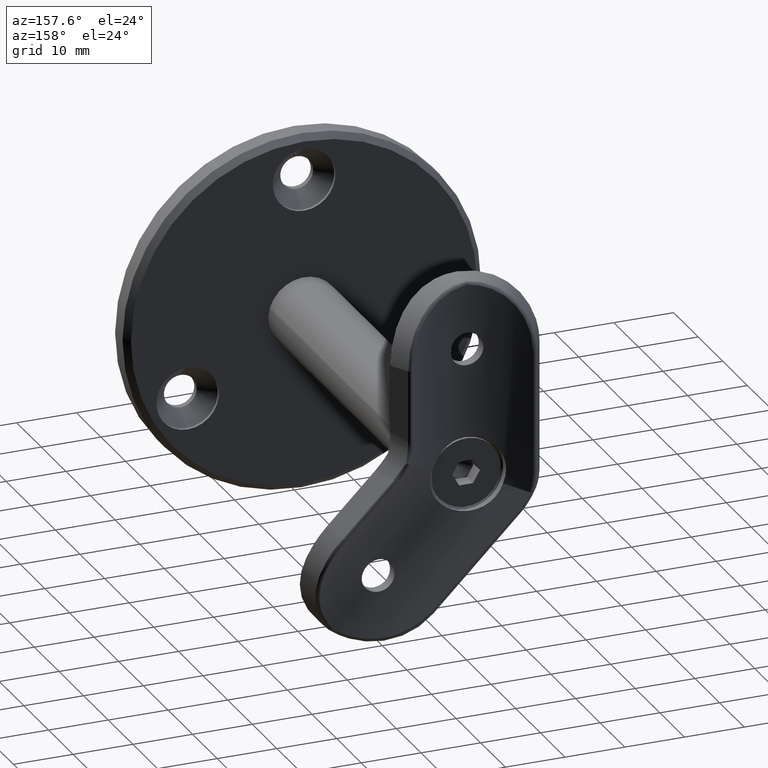
[diagram: clean part render]
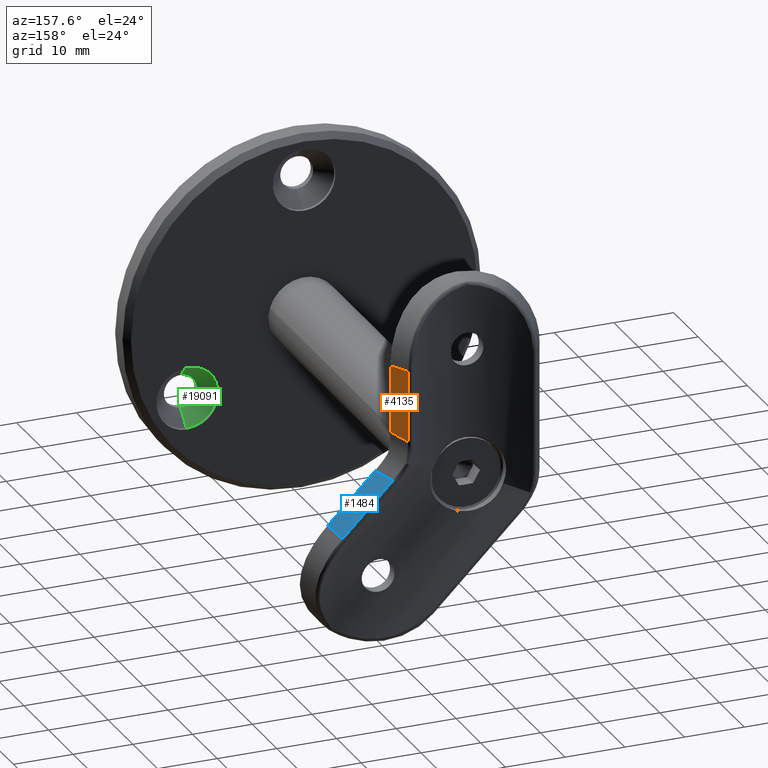
[diagram: same view with three faces highlighted in distinct colors, each labeled with its STEP entity id]
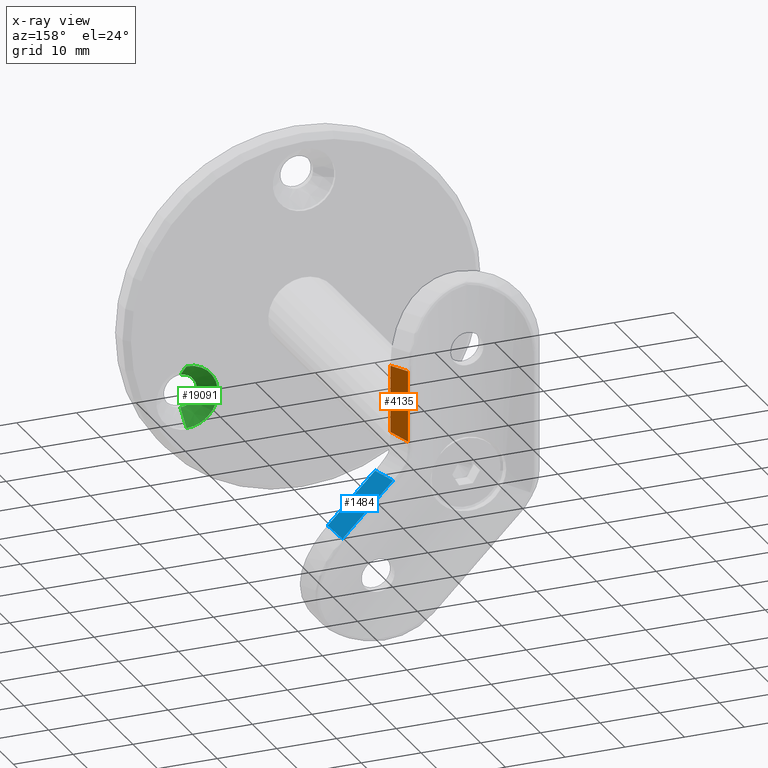
[diagram: x-ray of the same camera — body ghosted, the three highlighted faces saturated]
A machine part, auxiliary view with three faces highlighted in distinct colors.
The next image is the same camera in x-ray (body ghosted, the three faces saturated) — at least one of them is partly hidden behind the body in this view.
Their STEP definitions:

[orange] entity #4135 — the highlighted planar face has unit normal (0.8683, 0.496, 0).
#958 = DIRECTION ( 'NONE',  ( 0.4960317460317461000, -0.8683043861047214900, -0.0000000000000000000 ) ) ;
#1047 = EDGE_CURVE ( 'NONE', #9787, #3648, #6548, .T. ) ;
#2276 = CARTESIAN_POINT ( 'NONE',  ( 12.50000000000000000, 3.318729470161013500, -58.40618737384683400 ) ) ;
#2312 = CARTESIAN_POINT ( 'NONE',  ( 12.50000000000000000, 3.318729470161013500, -23.72569594041010900 ) ) ;
#2379 = LINE ( 'NONE', #11363, #6150 ) ;
#3182 = DIRECTION ( 'NONE',  ( -0.0000000000000000000, -0.0000000000000000000, 1.000000000000000000 ) ) ;
#3183 = VERTEX_POINT ( 'NONE', #2312 ) ;
#3483 = ORIENTED_EDGE ( 'NONE', *, *, #19138, .T. ) ;
#3648 = VERTEX_POINT ( 'NONE', #7754 ) ;
#4135 = ADVANCED_FACE ( 'NONE', ( #18503 ), #8327, .T. ) ;
#4157 = VECTOR ( 'NONE', #958, 1000.000000000000000 ) ;
#4522 = DIRECTION ( 'NONE',  ( 0.0000000000000000000, -0.0000000000000000000, 1.000000000000000000 ) ) ;
#5417 = DIRECTION ( 'NONE',  ( 0.8683043861047214900, 0.4960317460317461000, 0.0000000000000000000 ) ) ;
#5422 = CARTESIAN_POINT ( 'NONE',  ( 9.108661415616625200, 9.255273232014914700, -25.13043437666086900 ) ) ;
#6150 = VECTOR ( 'NONE', #3182, 1000.000000000000000 ) ;
#6548 = LINE ( 'NONE', #15862, #4157 ) ;
#7140 = EDGE_CURVE ( 'NONE', #3183, #3648, #2379, .T. ) ;
#7459 = ORIENTED_EDGE ( 'NONE', *, *, #7140, .F. ) ;
#7754 = CARTESIAN_POINT ( 'NONE',  ( 12.50000000000000000, 3.318729470161013500, -12.50000000000001800 ) ) ;
#7761 = VECTOR ( 'NONE', #4522, 1000.000000000000000 ) ;
#8327 = PLANE ( 'NONE',  #11254 ) ;
#9174 = LINE ( 'NONE', #15203, #7761 ) ;
#9775 = DIRECTION ( 'NONE',  ( -0.4960317460317461000, 0.8683043861047214900, 0.0000000000000000000 ) ) ;
#9787 = VERTEX_POINT ( 'NONE', #18166 ) ;
#9793 = VECTOR ( 'NONE', #12642, 1000.000000000000100 ) ;
#11254 = AXIS2_PLACEMENT_3D ( 'NONE', #2276, #5417, #9775 ) ;
#11363 = CARTESIAN_POINT ( 'NONE',  ( 12.50000000000000000, 3.318729470161013500, -58.40618737384683400 ) ) ;
#12642 = DIRECTION ( 'NONE',  ( -0.4858819846047192600, 0.8505372120568736000, -0.2012589077360306700 ) ) ;
#12684 = ORIENTED_EDGE ( 'NONE', *, *, #1047, .T. ) ;
#12927 = CARTESIAN_POINT ( 'NONE',  ( 10.76103118381681300, 6.362797238949669400, -24.44600040861706300 ) ) ;
#14683 = EDGE_CURVE ( 'NONE', #3183, #17537, #17726, .T. ) ;
#15203 = CARTESIAN_POINT ( 'NONE',  ( 10.76103118381681300, 6.362797238949669400, -58.40618737384683400 ) ) ;
#15862 = CARTESIAN_POINT ( 'NONE',  ( 12.50000000000000000, 3.318729470161013500, -12.50000000000000400 ) ) ;
#17138 = EDGE_LOOP ( 'NONE', ( #19425, #3483, #12684, #7459 ) ) ;
#17537 = VERTEX_POINT ( 'NONE', #12927 ) ;
#17726 = LINE ( 'NONE', #5422, #9793 ) ;
#18166 = CARTESIAN_POINT ( 'NONE',  ( 10.76103118381681300, 6.362797238949669400, -12.50000000000000400 ) ) ;
#18503 = FACE_OUTER_BOUND ( 'NONE', #17138, .T. ) ;
#19138 = EDGE_CURVE ( 'NONE', #17537, #9787, #9174, .T. ) ;
#19425 = ORIENTED_EDGE ( 'NONE', *, *, #14683, .T. ) ;

[blue] entity #1484 — the highlighted planar face has unit normal (-0.614, -0.496, -0.614).
#19 = DIRECTION ( 'NONE',  ( -0.6139839195486697100, -0.4960317460317461600, -0.6139839195486719300 ) ) ;
#432 = VECTOR ( 'NONE', #16965, 1000.000000000000000 ) ;
#821 = ORIENTED_EDGE ( 'NONE', *, *, #15851, .T. ) ;
#994 = EDGE_CURVE ( 'NONE', #14158, #2111, #8179, .T. ) ;
#1032 = DIRECTION ( 'NONE',  ( 0.7071067811865487900, 0.0000000000000000000, -0.7071067811865463500 ) ) ;
#1338 = CARTESIAN_POINT ( 'NONE',  ( 11.65186608117714700, 9.255273232014914700, -31.27027357214758800 ) ) ;
#1484 = ADVANCED_FACE ( 'NONE', ( #5794 ), #18042, .F. ) ;
#1978 = VECTOR ( 'NONE', #9101, 1000.000000000000100 ) ;
#2111 = VERTEX_POINT ( 'NONE', #3201 ) ;
#2917 = VERTEX_POINT ( 'NONE', #9285 ) ;
#3201 = CARTESIAN_POINT ( 'NONE',  ( 22.98097038856280600, 3.318729470161013500, -37.80330085889907800 ) ) ;
#3387 = LINE ( 'NONE', #1338, #1978 ) ;
#3945 = CARTESIAN_POINT ( 'NONE',  ( 13.30423584937733300, 6.362797238949669400, -30.58583960410378200 ) ) ;
#4620 = CARTESIAN_POINT ( 'NONE',  ( 9.460369391804770000, 8.639607842056918200, -28.58138669285514800 ) ) ;
#5794 = FACE_OUTER_BOUND ( 'NONE', #18162, .T. ) ;
#6440 = AXIS2_PLACEMENT_3D ( 'NONE', #4620, #19, #10523 ) ;
#8179 = LINE ( 'NONE', #17478, #12834 ) ;
#8228 = VERTEX_POINT ( 'NONE', #3945 ) ;
#9081 = VECTOR ( 'NONE', #16261, 1000.000000000000100 ) ;
#9101 = DIRECTION ( 'NONE',  ( 0.4858819846047193200, -0.8505372120568736000, 0.2012589077360306400 ) ) ;
#9285 = CARTESIAN_POINT ( 'NONE',  ( 21.75133374636773100, 6.362797238949669400, -39.03293750109414600 ) ) ;
#9577 = CARTESIAN_POINT ( 'NONE',  ( 10.38007616496672900, 6.362797238949669400, -27.66167991969318900 ) ) ;
#10129 = ORIENTED_EDGE ( 'NONE', *, *, #12583, .T. ) ;
#10230 = CARTESIAN_POINT ( 'NONE',  ( 21.57798074335140400, 6.791947014579899500, -39.20629050411047700 ) ) ;
#10523 = DIRECTION ( 'NONE',  ( -0.7071067811865487900, 0.0000000000000000000, 0.7071067811865462400 ) ) ;
#10941 = ORIENTED_EDGE ( 'NONE', *, *, #994, .T. ) ;
#12583 = EDGE_CURVE ( 'NONE', #2917, #8228, #14501, .T. ) ;
#12834 = VECTOR ( 'NONE', #1032, 1000.000000000000000 ) ;
#13180 = ORIENTED_EDGE ( 'NONE', *, *, #18225, .T. ) ;
#13990 = LINE ( 'NONE', #10230, #9081 ) ;
#14158 = VERTEX_POINT ( 'NONE', #17377 ) ;
#14501 = LINE ( 'NONE', #9577, #432 ) ;
#15851 = EDGE_CURVE ( 'NONE', #2111, #2917, #13990, .T. ) ;
#16261 = DIRECTION ( 'NONE',  ( -0.3507474113028503600, 0.8683043861047213800, -0.3507474113028516400 ) ) ;
#16965 = DIRECTION ( 'NONE',  ( -0.7071067811865487900, -0.0000000000000000000, 0.7071067811865463500 ) ) ;
#17377 = CARTESIAN_POINT ( 'NONE',  ( 15.04320466556052000, 3.318729470161013500, -29.86553513589681300 ) ) ;
#17478 = CARTESIAN_POINT ( 'NONE',  ( 12.50000000000000000, 3.318729470161013500, -27.32233047033630400 ) ) ;
#18042 = PLANE ( 'NONE',  #6440 ) ;
#18162 = EDGE_LOOP ( 'NONE', ( #821, #10129, #13180, #10941 ) ) ;
#18225 = EDGE_CURVE ( 'NONE', #8228, #14158, #3387, .T. ) ;

[green] entity #19091 — the highlighted conical surface has half-angle 45 deg.
#340 = DIRECTION ( 'NONE',  ( 0.0000000000000000000, 0.0000000000000000000, 1.000000000000000000 ) ) ;
#703 = VERTEX_POINT ( 'NONE', #3166 ) ;
#964 = CIRCLE ( 'NONE', #12226, 2.749999999999999100 ) ;
#975 = ORIENTED_EDGE ( 'NONE', *, *, #15624, .F. ) ;
#1128 = CARTESIAN_POINT ( 'NONE',  ( 19.48557158514997300, 1.000000000000002700, -8.499999999999820600 ) ) ;
#1233 = CARTESIAN_POINT ( 'NONE',  ( 19.48557158514997300, 3.499999999999999600, -11.24999999999981900 ) ) ;
#1658 = EDGE_CURVE ( 'NONE', #15656, #5988, #964, .T. ) ;
#1972 = DIRECTION ( 'NONE',  ( -0.0000000000000000000, 1.000000000000000000, -0.0000000000000000000 ) ) ;
#2114 = CARTESIAN_POINT ( 'NONE',  ( 19.48557158514997300, 3.499999999999999600, -5.999999999999821500 ) ) ;
#2172 = VERTEX_POINT ( 'NONE', #14999 ) ;
#2189 = FACE_OUTER_BOUND ( 'NONE', #13456, .T. ) ;
#2422 = CONICAL_SURFACE ( 'NONE', #4575, 5.249999999999997300, 0.7853981633974485000 ) ;
#3166 = CARTESIAN_POINT ( 'NONE',  ( 19.48557158514997300, 3.499999999999999600, -5.999999999999821500 ) ) ;
#3389 = AXIS2_PLACEMENT_3D ( 'NONE', #4921, #1972, #6379 ) ;
#3443 = CIRCLE ( 'NONE', #3389, 5.249999999999997300 ) ;
#4558 = ORIENTED_EDGE ( 'NONE', *, *, #1658, .F. ) ;
#4575 = AXIS2_PLACEMENT_3D ( 'NONE', #1233, #11801, #17684 ) ;
#4921 = CARTESIAN_POINT ( 'NONE',  ( 19.48557158514997300, 3.499999999999999600, -11.24999999999981900 ) ) ;
#5988 = VERTEX_POINT ( 'NONE', #1128 ) ;
#6017 = LINE ( 'NONE', #2114, #11194 ) ;
#6076 = EDGE_CURVE ( 'NONE', #15656, #2172, #15189, .T. ) ;
#6379 = DIRECTION ( 'NONE',  ( 0.0000000000000000000, 0.0000000000000000000, 1.000000000000000000 ) ) ;
#6952 = ORIENTED_EDGE ( 'NONE', *, *, #15478, .T. ) ;
#7223 = VECTOR ( 'NONE', #13772, 999.9999999999998900 ) ;
#7891 = CARTESIAN_POINT ( 'NONE',  ( 19.48557158514997300, 1.000000000000002700, -11.24999999999981900 ) ) ;
#9606 = DIRECTION ( 'NONE',  ( 0.0000000000000000000, 0.7071067811865473500, 0.7071067811865477900 ) ) ;
#11194 = VECTOR ( 'NONE', #9606, 999.9999999999998900 ) ;
#11801 = DIRECTION ( 'NONE',  ( -0.0000000000000000000, 1.000000000000000000, -0.0000000000000000000 ) ) ;
#12149 = CARTESIAN_POINT ( 'NONE',  ( 19.48557158514997300, 3.499999999999999600, -16.49999999999981500 ) ) ;
#12226 = AXIS2_PLACEMENT_3D ( 'NONE', #7891, #15430, #340 ) ;
#13456 = EDGE_LOOP ( 'NONE', ( #4558, #15076, #6952, #975 ) ) ;
#13772 = DIRECTION ( 'NONE',  ( 8.659560562354936600E-017, 0.7071067811865473500, -0.7071067811865477900 ) ) ;
#14999 = CARTESIAN_POINT ( 'NONE',  ( 19.48557158514997300, 3.499999999999999600, -16.49999999999981500 ) ) ;
#15076 = ORIENTED_EDGE ( 'NONE', *, *, #6076, .T. ) ;
#15189 = LINE ( 'NONE', #12149, #7223 ) ;
#15430 = DIRECTION ( 'NONE',  ( -0.0000000000000000000, 1.000000000000000000, -0.0000000000000000000 ) ) ;
#15478 = EDGE_CURVE ( 'NONE', #2172, #703, #3443, .T. ) ;
#15622 = CARTESIAN_POINT ( 'NONE',  ( 19.48557158514997300, 1.000000000000002700, -13.99999999999981900 ) ) ;
#15624 = EDGE_CURVE ( 'NONE', #5988, #703, #6017, .T. ) ;
#15656 = VERTEX_POINT ( 'NONE', #15622 ) ;
#17684 = DIRECTION ( 'NONE',  ( 0.0000000000000000000, 0.0000000000000000000, 1.000000000000000000 ) ) ;
#19091 = ADVANCED_FACE ( 'NONE', ( #2189 ), #2422, .F. ) ;